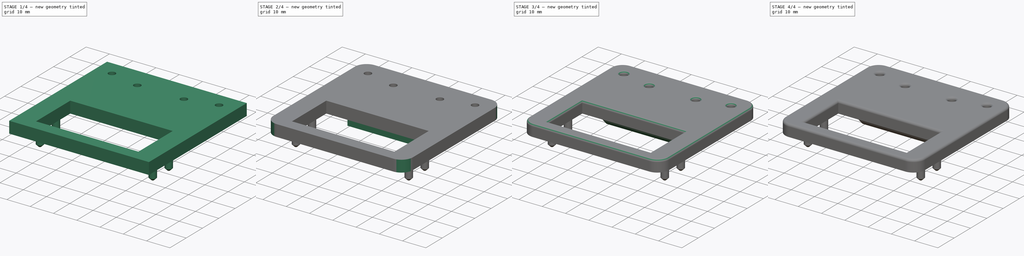
[diagram: build sequence overview — one tinted view per stage of 4, left to right]
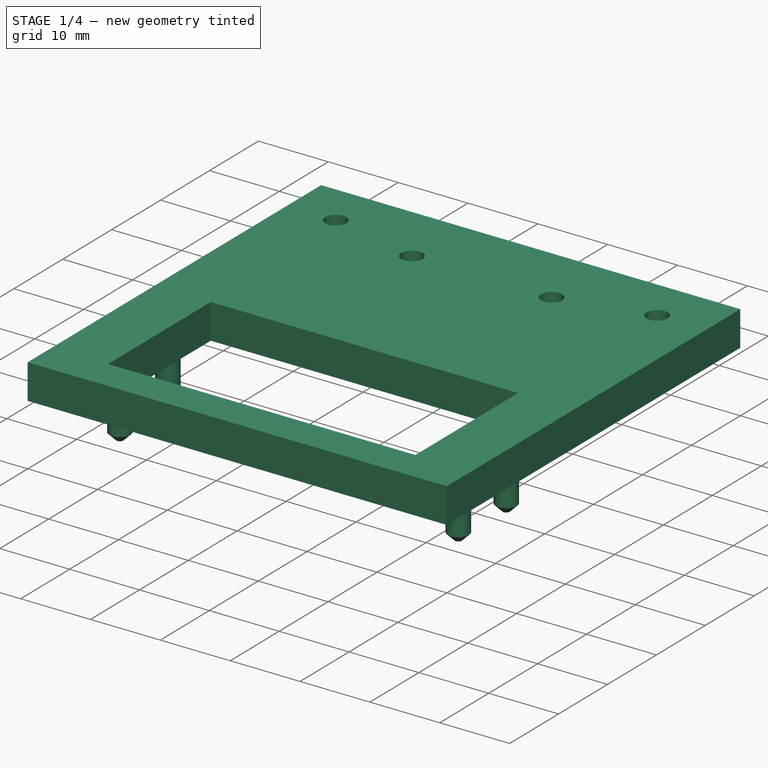
[diagram: stage 1 of 4 — iso view after this stage's code; geometry added in this stage tinted green]
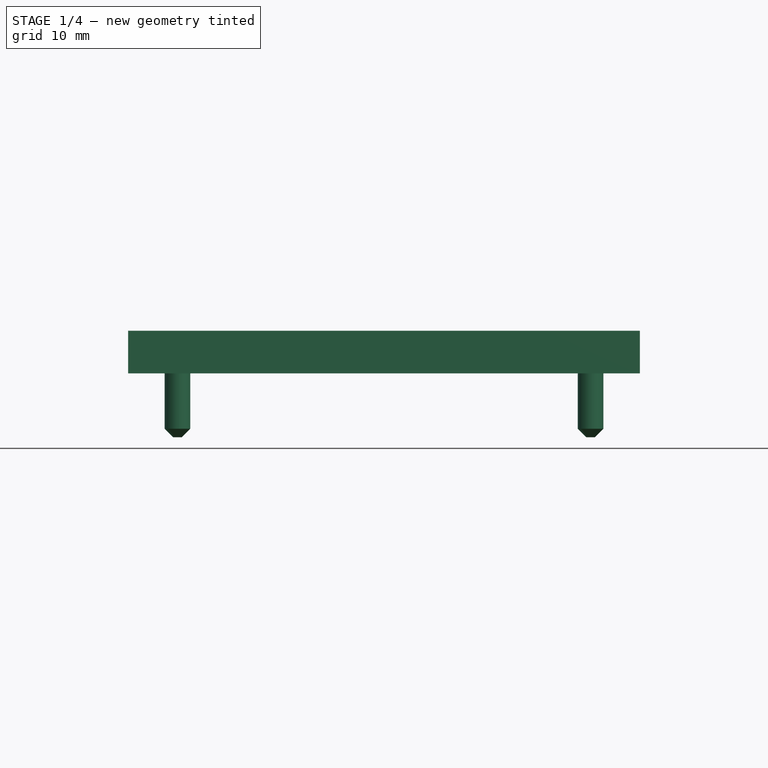
[diagram: stage 1 of 4 — front view after this stage's code; geometry added in this stage tinted green]
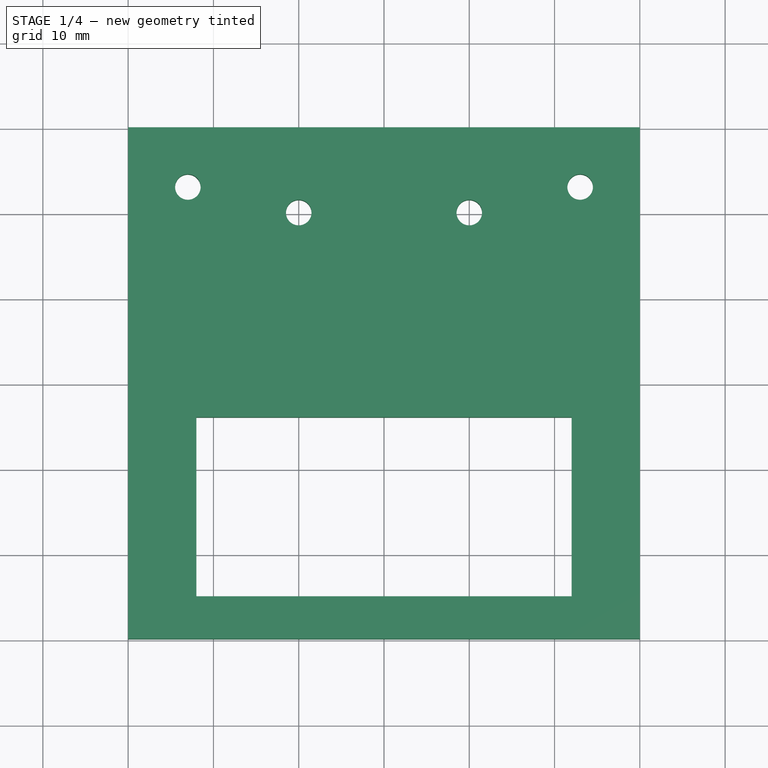
[diagram: stage 1 of 4 — top view after this stage's code; geometry added in this stage tinted green]
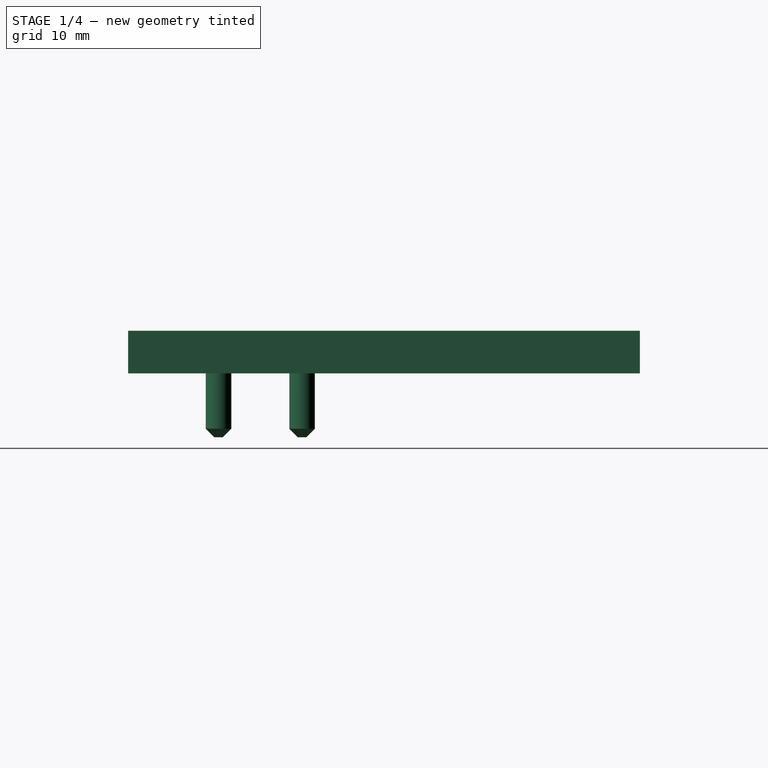
[diagram: stage 1 of 4 — right view after this stage's code; geometry added in this stage tinted green]
FCSTD DOCUMENT  (FreeCAD 0.20R29410 (Git))
Label: servo_mount_plate_v2
License: All rights reserved
LicenseURL: http://en.wikipedia.org/wiki/All_rights_reserved
objects: PartDesign::Fillet×6, Sketcher::SketchObject×4, PartDesign::Pad×4, PartDesign::Chamfer×2, PartDesign::Body×1
note: 29 computed .brp shape members not serialized (recipe doc carries the construction recipe); baked Part::Feature solids carry a one-line shape summary decoded from their .brp

FEATURE [Sketcher::SketchObject] Sketch
  FullyConstrained = true
  MapMode = 5
  Support = -> [XY_Plane]
  sketch-geometry (16):
    g0: LineSegment StartX=0 StartY=0 StartZ=0 EndX=60 EndY=0 EndZ=0
    g1: LineSegment StartX=60 StartY=0 StartZ=0 EndX=60 EndY=60 EndZ=0
    g2: LineSegment StartX=60 StartY=60 StartZ=0 EndX=0 EndY=60 EndZ=0
    g3: LineSegment StartX=0 StartY=60 StartZ=0 EndX=0 EndY=0 EndZ=0
    g4: LineSegment StartX=8 StartY=26 StartZ=0 EndX=52 EndY=26 EndZ=0
    g5: LineSegment StartX=52 StartY=26 StartZ=0 EndX=52 EndY=5 EndZ=0
    g6: LineSegment StartX=52 StartY=5 StartZ=0 EndX=8 EndY=5 EndZ=0
    g7: LineSegment StartX=8 StartY=5 StartZ=0 EndX=8 EndY=26 EndZ=0
    g8: LineSegment StartX=0 StartY=33 StartZ=0 EndX=60 EndY=33 EndZ=0
    g9: Circle CenterX=7 CenterY=53 CenterZ=0 NormalX=0 NormalY=0 NormalZ=1 AngleXU=0 Radius=1.5
    g10: Circle CenterX=40 CenterY=50 CenterZ=0 NormalX=0 NormalY=0 NormalZ=1 AngleXU=0 Radius=1.5
    g11: Circle CenterX=20 CenterY=50 CenterZ=0 NormalX=0 NormalY=0 NormalZ=1 AngleXU=0 Radius=1.5
    g12: Circle CenterX=53 CenterY=53 CenterZ=0 NormalX=0 NormalY=0 NormalZ=1 AngleXU=0 Radius=1.5
    g13: LineSegment StartX=0 StartY=45 StartZ=0 EndX=60 EndY=45 EndZ=0
    g14: LineSegment StartX=8 StartY=5 StartZ=0 EndX=0 EndY=0 EndZ=0
    g15: LineSegment StartX=52 StartY=5 StartZ=0 EndX=60 EndY=0 EndZ=0
  constraints (47):
    c: Coincident(g0,g1)
    c: Coincident(g1,g2)
    c: Coincident(g2,g3)
    c: Coincident(g3,g0)
    c: Horizontal(g0)
    c: Horizontal(g2)
    c: Vertical(g1)
    c: Vertical(g3)
    c: Coincident(g0,g-1)
    c: DistanceX(g0,g0) = 60
    c: DistanceY(g3,g3) = 60
    c: Coincident(g4,g5)
    c: Coincident(g5,g6)
    c: Coincident(g6,g7)
    c: Coincident(g7,g4)
    c: Horizontal(g4)
    c: Horizontal(g6)
    c: Vertical(g5)
    c: Vertical(g7)
    c: DistanceX(g6,g6) = 44
    c: DistanceY(g7,g7) = 21
    c: DistanceY(g6) = 5
    c: PointOnObject(g8,g3)
    c: PointOnObject(g8,g1)
    c: Horizontal(g8)
    c: DistanceY(g4,g8) = 7
    c: Diameter(g9) = 3
    c: DistanceX(g2,g9) = 7
    c: DistanceY(g9,g2) = 7
    c: Diameter(g11) = 3
    c: Diameter(g12) = 3
    c: Diameter(g10) = 3
    c: PointOnObject(g13,g3)
    c: PointOnObject(g13,g1)
    c: Horizontal(g13)
    c: DistanceY(g8,g13) = 12
    c: DistanceY(g13,g10) = 5
    c: DistanceY(g12,g2) = 7
    c: DistanceY(g13,g11) = 5
    c: DistanceX(g2,g11) = 20
    c: DistanceX(g10,g13) = 20
    c: DistanceX(g12,g13) = 7
    c: Coincident(g14,g6)
    c: Coincident(g14,g0)
    c: Coincident(g15,g5)
    c: Coincident(g15,g0)
    c: Equal(g15,g14)
FEATURE [PartDesign::Pad] Pad
  Direction = (0,0,1)
  Length = 5
  Length2 = 10
  Profile = -> Sketch
  ReferenceAxis = -> Sketch [N_Axis]
  Type = 0
FEATURE [Sketcher::SketchObject] Sketch001
  ExternalGeometry = -> [Pad]
  FullyConstrained = true
  MapMode = 5
  Placement = pos=(0,0,0) rot=(1,0,0;3.14159rad)
  Support = -> [Pad]
  sketch-geometry (10):
    g0: Circle CenterX=5.775 CenterY=-10.6 CenterZ=0 NormalX=0 NormalY=0 NormalZ=1 AngleXU=0 Radius=1.5
    g1: Circle CenterX=5.775 CenterY=-20.4 CenterZ=0 NormalX=0 NormalY=0 NormalZ=1 AngleXU=0 Radius=1.5
    g2: Circle CenterX=54.225 CenterY=-10.6 CenterZ=0 NormalX=0 NormalY=0 NormalZ=1 AngleXU=0 Radius=1.5
    g3: Circle CenterX=54.225 CenterY=-20.4 CenterZ=0 NormalX=0 NormalY=0 NormalZ=1 AngleXU=0 Radius=1.5
    g4: LineSegment StartX=5.775 StartY=-10.6 StartZ=0 EndX=54.225 EndY=-20.4 EndZ=0
    g5: LineSegment StartX=54.225 StartY=-10.6 StartZ=0 EndX=5.775 EndY=-20.4 EndZ=0
    g6: GeomPoint X=30 Y=-15.5 Z=0
    g7: LineSegment StartX=30 StartY=-15.5 StartZ=0 EndX=8 EndY=-5 EndZ=0
    g8: LineSegment StartX=30 StartY=-15.5 StartZ=0 EndX=52 EndY=-5 EndZ=0
    g9: LineSegment StartX=30 StartY=-15.5 StartZ=0 EndX=8 EndY=-26 EndZ=0
  constraints (24):
    c: Diameter(g0) = 3
    c: Diameter(g1) = 3
    c: Diameter(g2) = 3
    c: Diameter(g3) = 3
    c: Vertical(g1,g0)
    c: Vertical(g2,g3)
    c: Horizontal(g0,g2)
    c: Horizontal(g1,g3)
    c: DistanceY(g1,g0) = 9.8
    c: DistanceX(g1,g3) = 48.45
    c: Coincident(g4,g0)
    c: Coincident(g4,g3)
    c: Coincident(g5,g2)
    c: Coincident(g5,g1)
    c: PointOnObject(g6,g5)
    c: PointOnObject(g6,g4)
    c: Coincident(g7,g6)
    c: Coincident(g7,g-4)
    c: Coincident(g8,g7)
    c: Coincident(g8,g-3)
    c: Coincident(g9,g7)
    c: Coincident(g9,g-4)
    c: Equal(g8,g7)
    c: Equal(g7,g9)
FEATURE [PartDesign::Pad] Pad001
  BaseFeature = -> Pad
  Direction = (0,0,-1)
  Length = 7.5
  Length2 = 10
  Profile = -> Sketch001
  ReferenceAxis = -> Sketch001 [N_Axis]
  Type = 0
FEATURE [PartDesign::Chamfer] Chamfer
  Angle = 45
  Base = -> Pad001 [Edge34,Edge36,Edge44,Edge42]
  BaseFeature = -> Pad001
  ChamferType = 0
  FlipDirection = false
  Size = 1
  Size2 = 1
  SupportTransform = false
  UseAllEdges = false
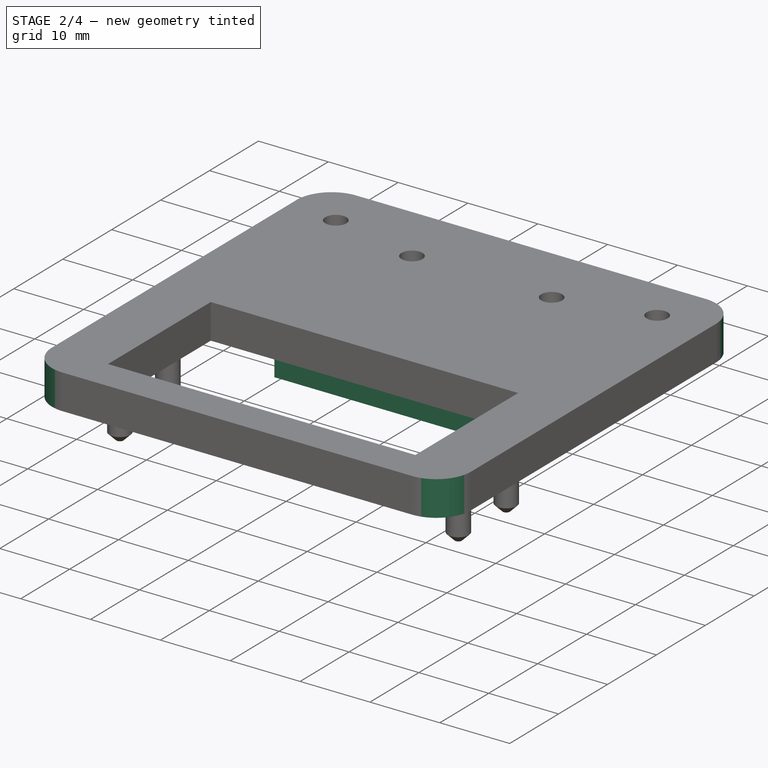
[diagram: stage 2 of 4 — iso view after this stage's code; geometry added in this stage tinted green]
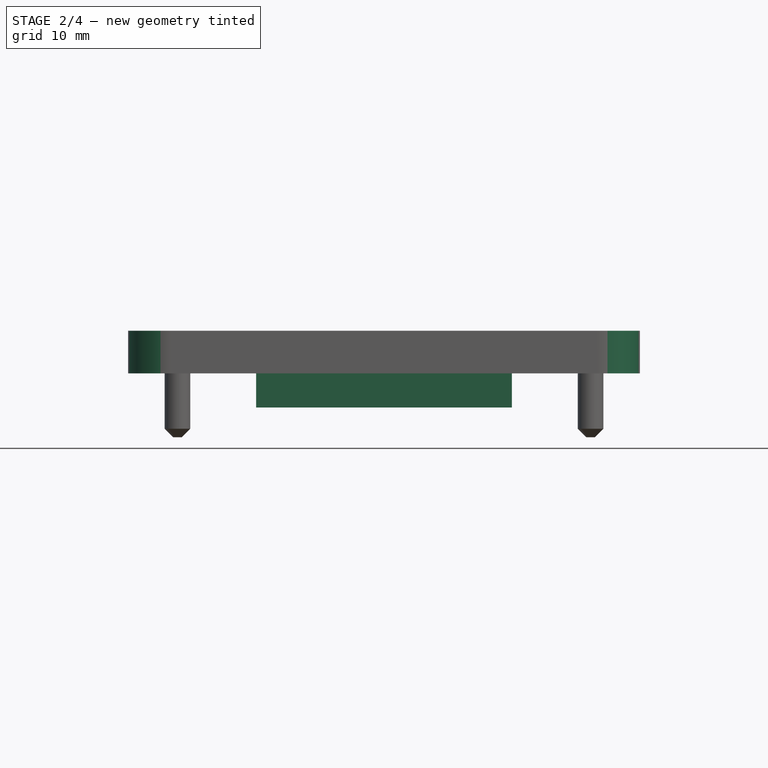
[diagram: stage 2 of 4 — front view after this stage's code; geometry added in this stage tinted green]
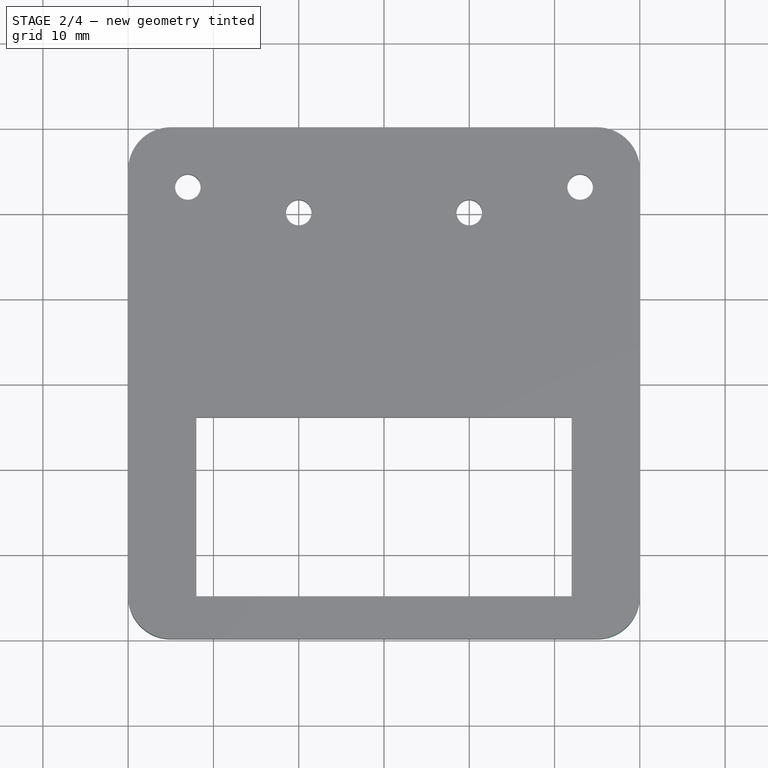
[diagram: stage 2 of 4 — top view after this stage's code; geometry added in this stage tinted green]
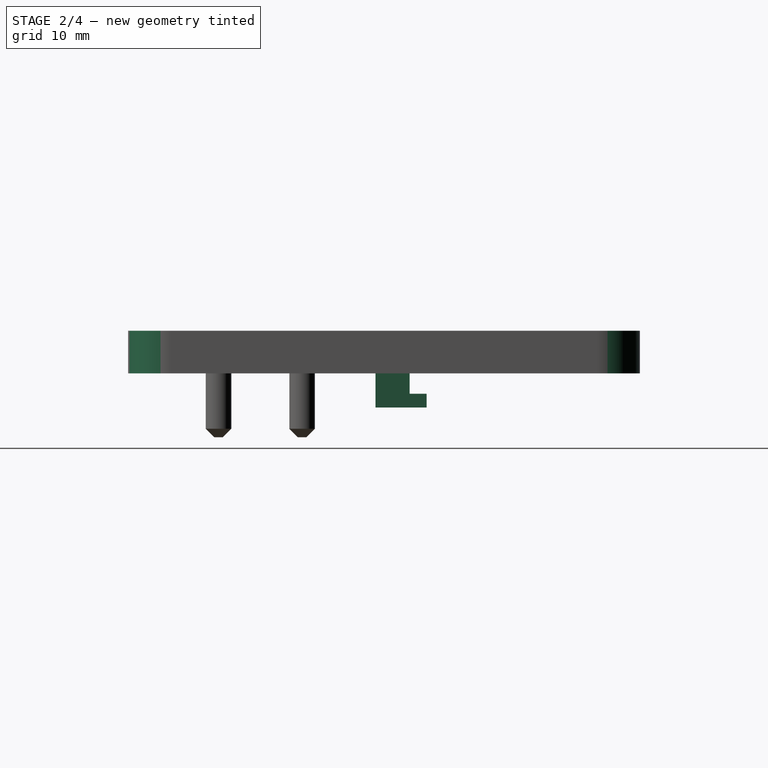
[diagram: stage 2 of 4 — right view after this stage's code; geometry added in this stage tinted green]
FEATURE [PartDesign::Fillet] Fillet
  Base = -> Chamfer [Edge21,Edge22,Edge24,Edge26]
  BaseFeature = -> Chamfer
  Radius = 5
  SupportTransform = false
  UseAllEdges = false
FEATURE [Sketcher::SketchObject] Sketch002
  ExternalGeometry = -> [Fillet]
  FullyConstrained = true
  MapMode = 5
  Placement = pos=(0,0,0) rot=(1,0,0;3.14159rad)
  Support = -> [Fillet]
  sketch-geometry (7):
    g0: LineSegment StartX=0 StartY=-33 StartZ=0 EndX=60 EndY=-33 EndZ=0
    g1: LineSegment StartX=15 StartY=-33 StartZ=0 EndX=45 EndY=-33 EndZ=0
    g2: LineSegment StartX=45 StartY=-33 StartZ=0 EndX=45 EndY=-29 EndZ=0
    g3: LineSegment StartX=45 StartY=-29 StartZ=0 EndX=15 EndY=-29 EndZ=0
    g4: LineSegment StartX=15 StartY=-29 StartZ=0 EndX=15 EndY=-33 EndZ=0
    g5: GeomPoint X=30 Y=-33 Z=0
    g6: LineSegment StartX=30 StartY=-33 StartZ=0 EndX=30 EndY=0 EndZ=0
  constraints (19):
    c: PointOnObject(g0,g-4)
    c: PointOnObject(g0,g-5)
    c: Horizontal(g0)
    c: DistanceY(g0,g-3) = 7
    c: Coincident(g1,g2)
    c: Coincident(g2,g3)
    c: Coincident(g3,g4)
    c: Coincident(g4,g1)
    c: Horizontal(g1)
    c: Horizontal(g3)
    c: Vertical(g2)
    c: Vertical(g4)
    c: PointOnObject(g1,g0)
    c: DistanceY(g4,g4) = 4
    c: Symmetric(g1,g1,g5)
    c: Coincident(g6,g5)
    c: Symmetric(g-6,g-6,g6)
    c: DistanceX(g1,g1) = 30
    c: Vertical(g6)
FEATURE [PartDesign::Pad] Pad002  label="Pad-brace-vertical"
  BaseFeature = -> Fillet
  Direction = (0,0,-1)
  Length = 4
  Length2 = 10
  Profile = -> Sketch002
  ReferenceAxis = -> Sketch002 [N_Axis]
  Type = 0
FEATURE [Sketcher::SketchObject] Sketch003
  ExternalGeometry = -> [Pad002]
  FullyConstrained = true
  MapMode = 5
  Placement = pos=(0,33,0) rot=(0,0.707107,0.707107;3.14159rad)
  Support = -> [Pad002]
  sketch-geometry (4):
    g0: LineSegment StartX=-15 StartY=-4 StartZ=0 EndX=-45 EndY=-4 EndZ=0
    g1: LineSegment StartX=-45 StartY=-4 StartZ=0 EndX=-45 EndY=-2.4 EndZ=0
    g2: LineSegment StartX=-45 StartY=-2.4 StartZ=0 EndX=-15 EndY=-2.4 EndZ=0
    g3: LineSegment StartX=-15 StartY=-2.4 StartZ=0 EndX=-15 EndY=-4 EndZ=0
  constraints (11):
    c: Coincident(g0,g1)
    c: Coincident(g1,g2)
    c: Coincident(g2,g3)
    c: Coincident(g3,g0)
    c: Horizontal(g0)
    c: Horizontal(g2)
    c: Vertical(g1)
    c: Vertical(g3)
    c: Coincident(g0,g-4)
    c: PointOnObject(g1,g-3)
    c: DistanceY(g1,g-3) = 2.4
FEATURE [PartDesign::Pad] Pad003
  BaseFeature = -> Pad002
  Direction = (0,1,-2e-16)
  Length = 2
  Length2 = 10
  Profile = -> Sketch003
  ReferenceAxis = -> Sketch003 [N_Axis]
  Type = 0
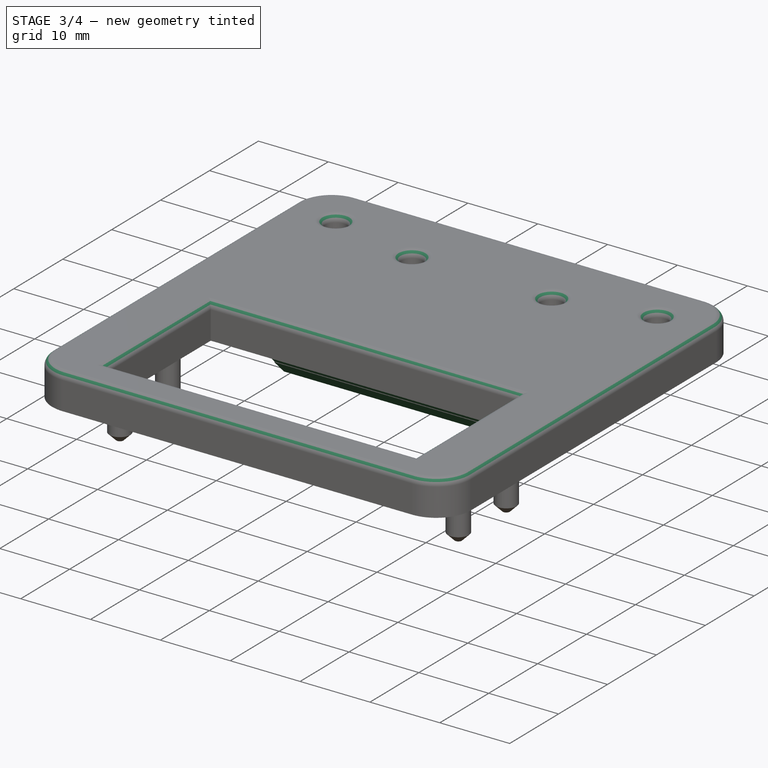
[diagram: stage 3 of 4 — iso view after this stage's code; geometry added in this stage tinted green]
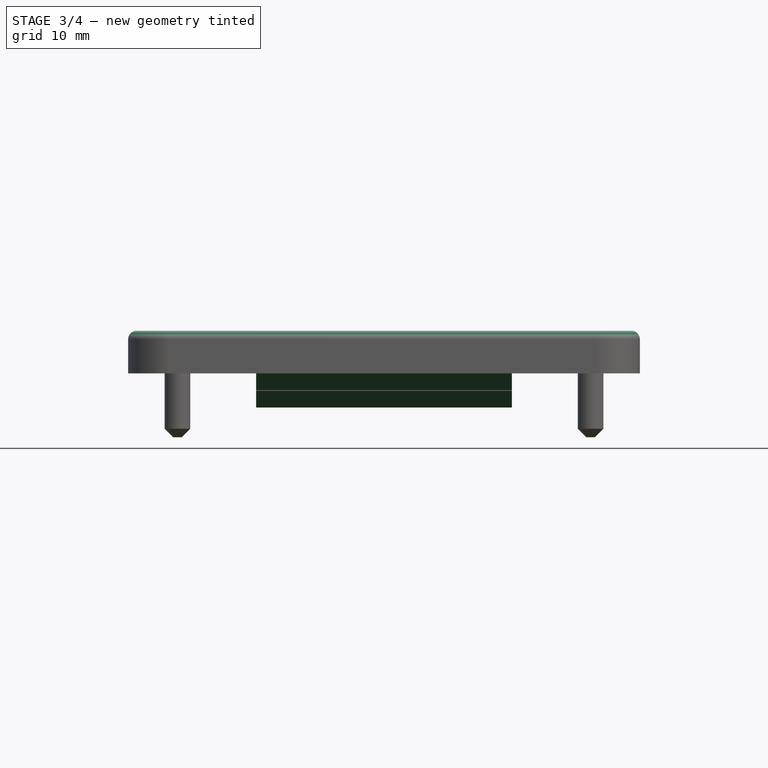
[diagram: stage 3 of 4 — front view after this stage's code; geometry added in this stage tinted green]
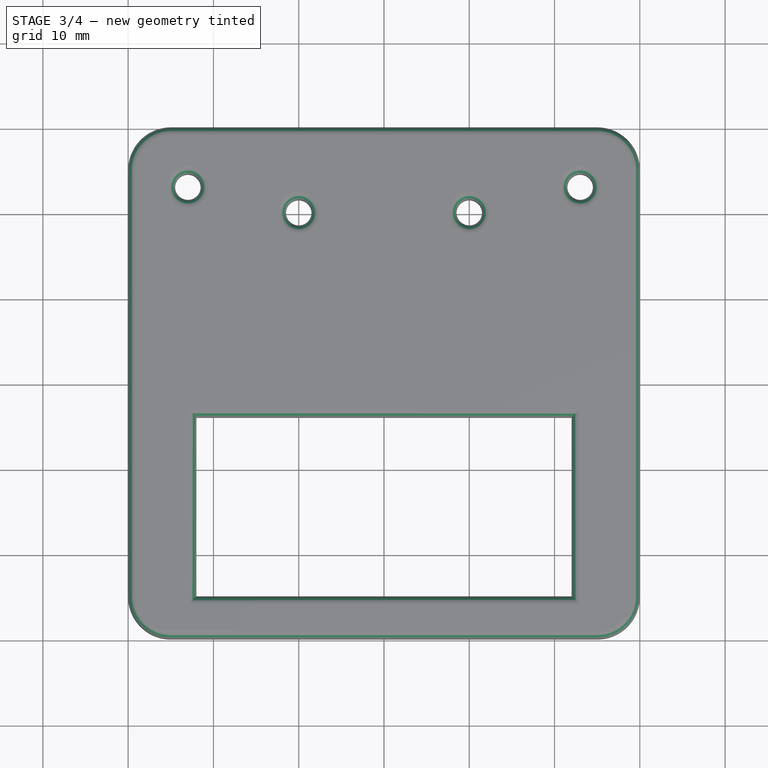
[diagram: stage 3 of 4 — top view after this stage's code; geometry added in this stage tinted green]
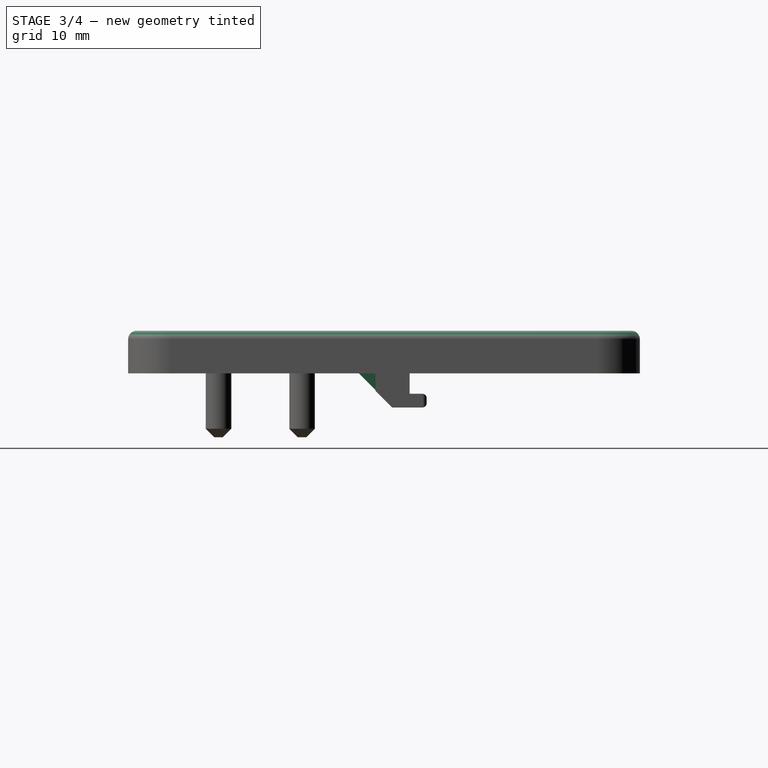
[diagram: stage 3 of 4 — right view after this stage's code; geometry added in this stage tinted green]
FEATURE [PartDesign::Fillet] Fillet001
  Base = -> Pad003 [Face40]
  BaseFeature = -> Pad003
  Radius = 0.5
  SupportTransform = false
  UseAllEdges = false
FEATURE [PartDesign::Chamfer] Chamfer001
  Angle = 45
  Base = -> Fillet001 [Edge29,Edge28]
  BaseFeature = -> Fillet001
  ChamferType = 0
  FlipDirection = false
  Size = 1.95
  Size2 = 1
  SupportTransform = false
  UseAllEdges = false
FEATURE [PartDesign::Fillet] Fillet002
  Base = -> Chamfer001 [Face34]
  BaseFeature = -> Chamfer001
  Radius = 1
  SupportTransform = false
  UseAllEdges = false
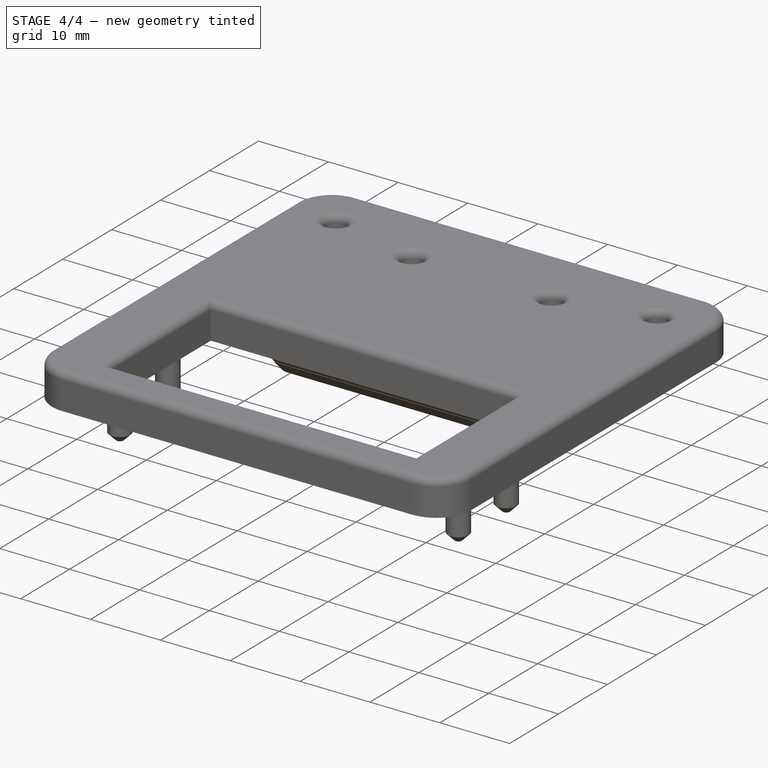
[diagram: stage 4 of 4 — iso view after this stage's code; geometry added in this stage tinted green]
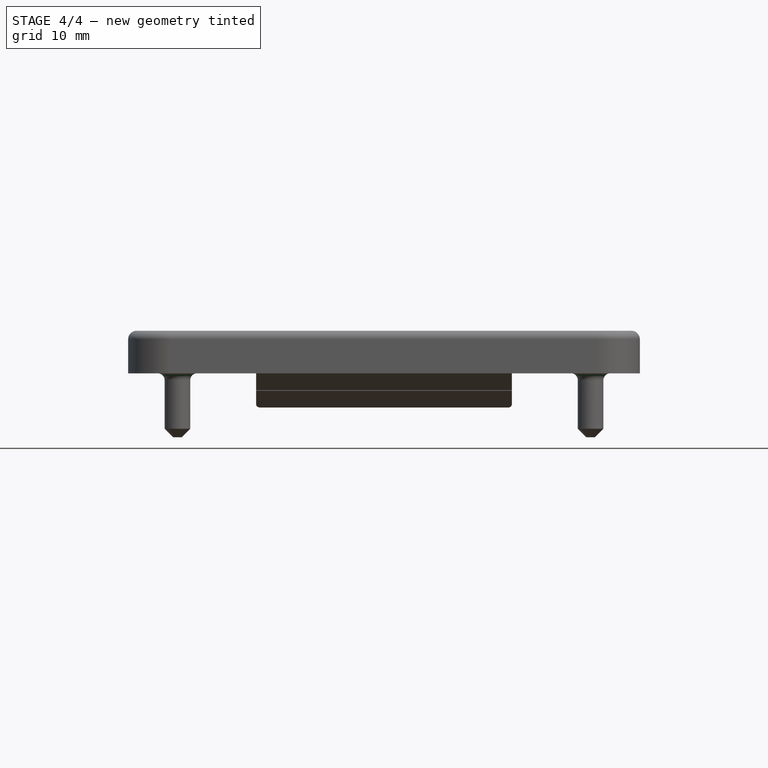
[diagram: stage 4 of 4 — front view after this stage's code; geometry added in this stage tinted green]
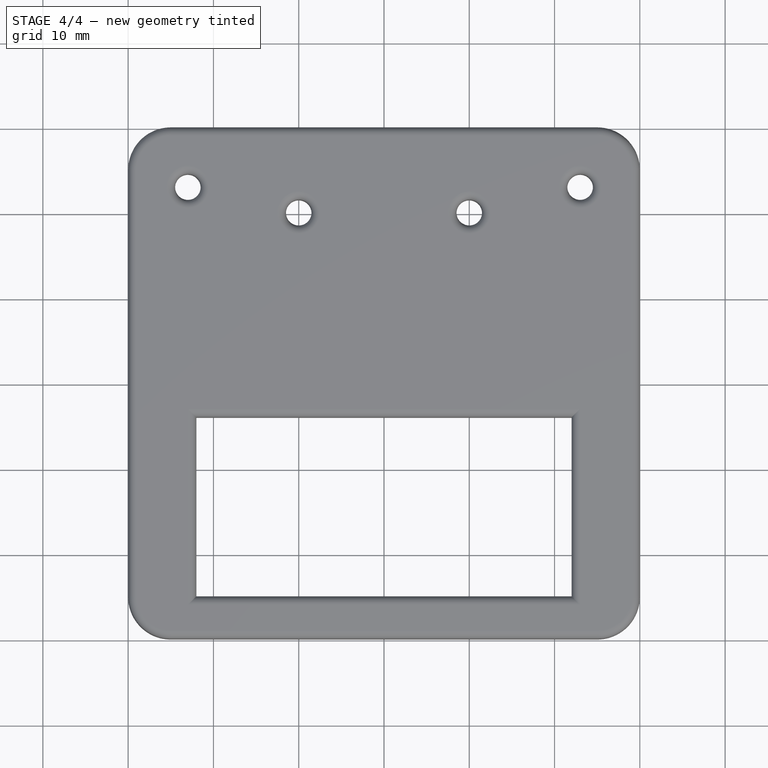
[diagram: stage 4 of 4 — top view after this stage's code; geometry added in this stage tinted green]
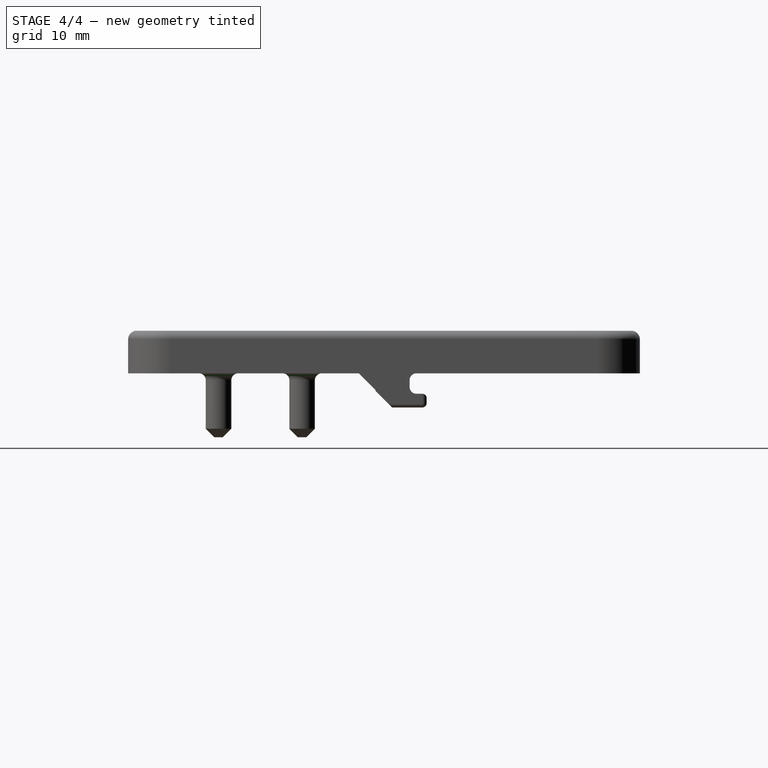
[diagram: stage 4 of 4 — right view after this stage's code; geometry added in this stage tinted green]
FEATURE [PartDesign::Fillet] Fillet003
  Base = -> Fillet002 [Edge64,Edge14]
  BaseFeature = -> Fillet002
  Radius = 0.8
  SupportTransform = false
  UseAllEdges = false
FEATURE [PartDesign::Fillet] Fillet004
  Base = -> Fillet003 [Edge24,Edge23,Edge18,Edge17]
  BaseFeature = -> Fillet003
  Radius = 0.8
  SupportTransform = false
  UseAllEdges = false
FEATURE [PartDesign::Fillet] Fillet005
  Base = -> Fillet004 [Edge142,Edge78,Edge69,Edge135]
  BaseFeature = -> Fillet004
  Radius = 0.4
  SupportTransform = false
  UseAllEdges = false
FEATURE [PartDesign::Body] Body
  Group = -> [Sketch,Pad,Sketch001,Pad001,Chamfer,Fillet,Sketch002,Pad002,Sketch003,Pad003,Fillet001,Chamfer001,Fillet002,Fillet003,Fillet004,Fillet005]
  Origin = -> Origin
  Tip = -> Fillet005
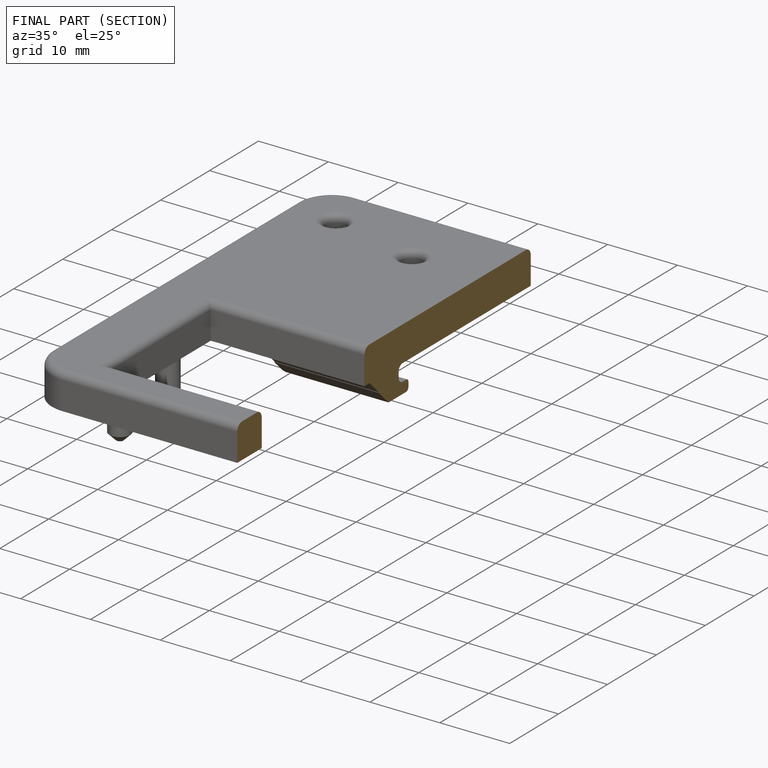
[diagram: finished part — half-section view (interior)]
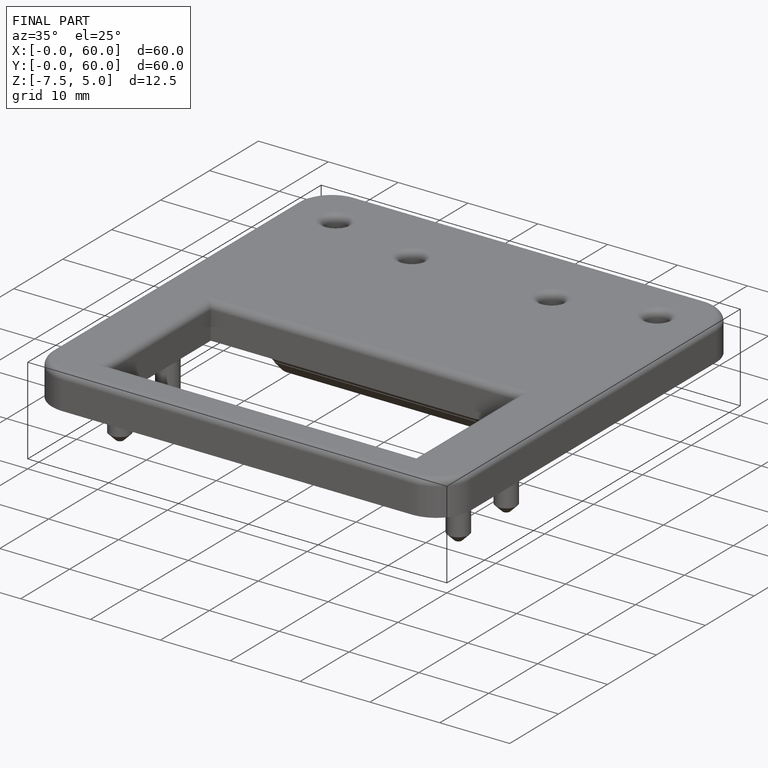
[diagram: finished part — iso view with bounding-box wireframe]
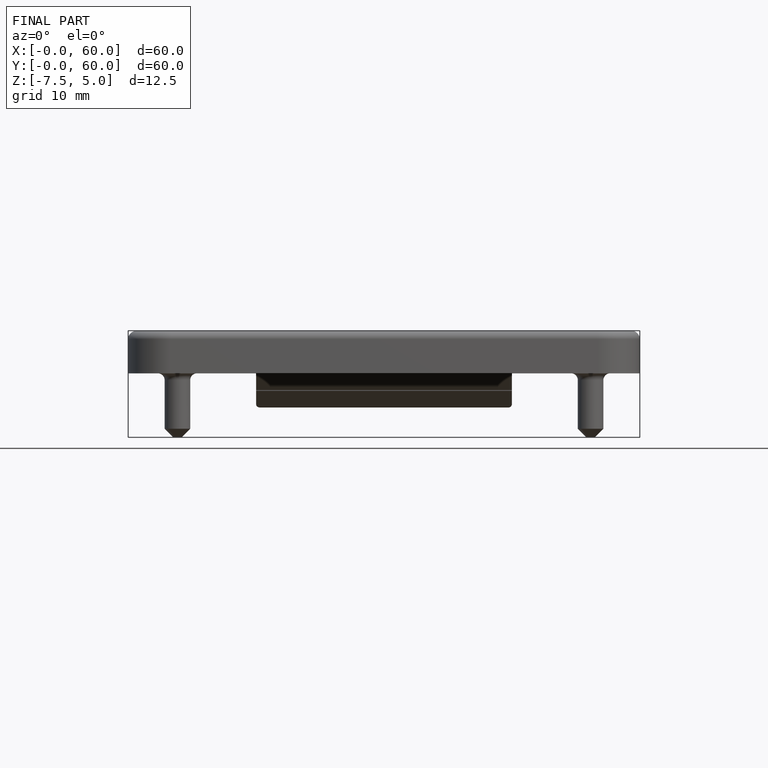
[diagram: finished part — front view with bounding-box wireframe]
